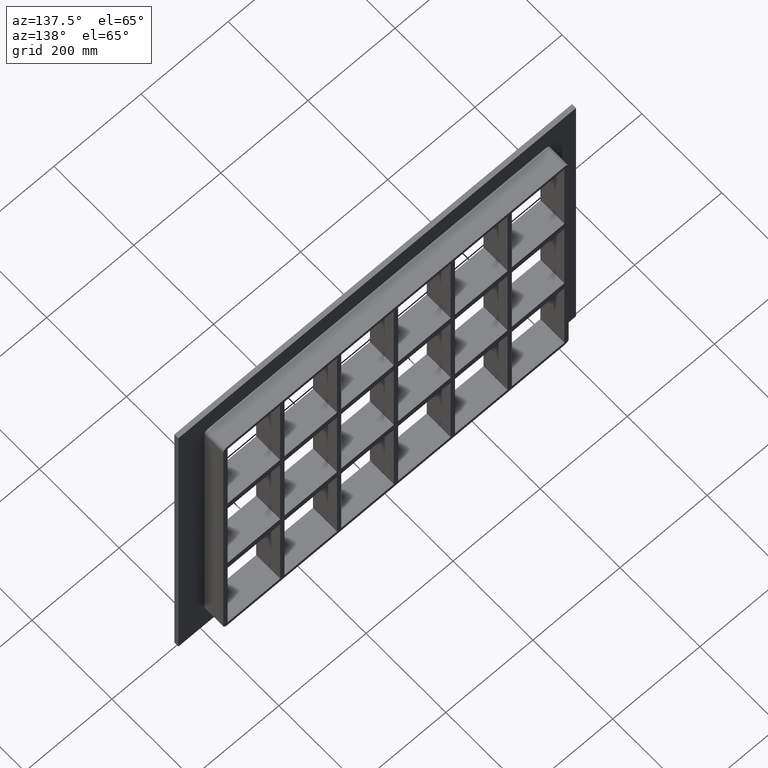
[diagram: clean part render]
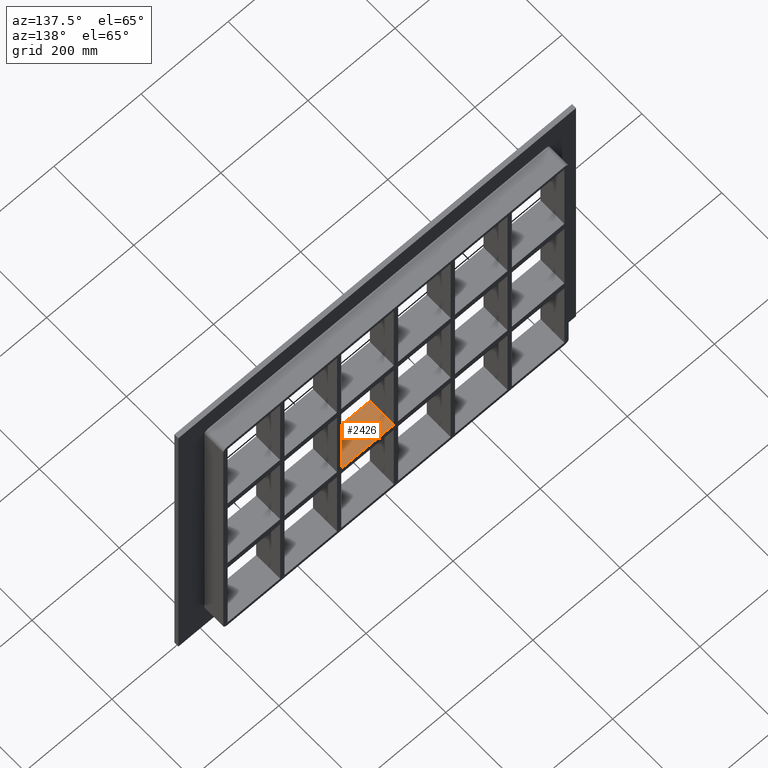
[diagram: same view with one face highlighted and labeled with its STEP entity id]
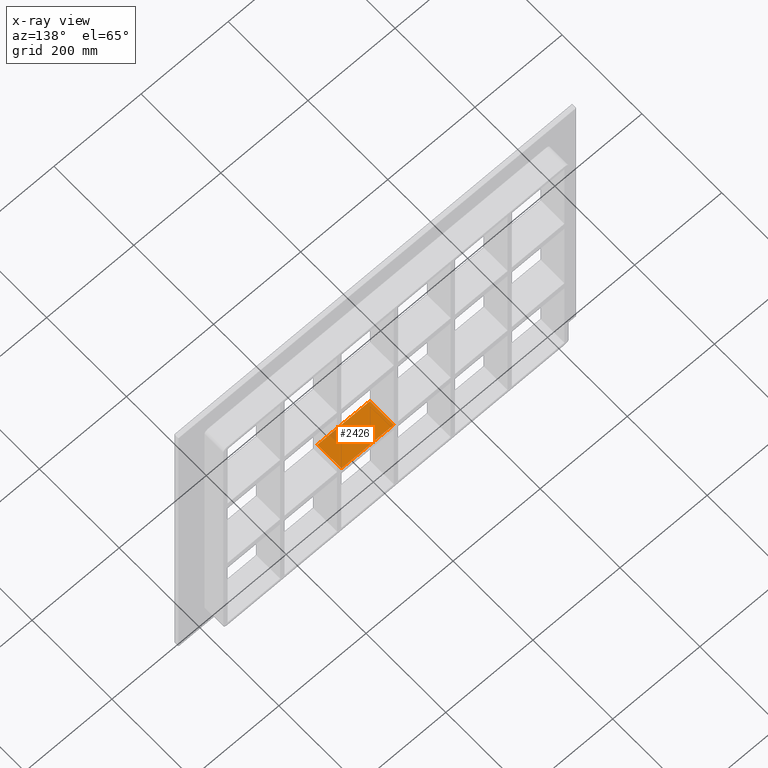
[diagram: x-ray of the same camera — body ghosted, the highlighted face saturated]
A machine part, auxiliary view. The second image highlights one B-rep face of the part: STEP entity #2426.
The next image is the same camera in x-ray: the body ghosted, the highlighted face saturated — about 5% of this face is hidden behind the body in this view.
In plain terms, the highlighted planar face has unit normal (0, 0, 1).
Its self-contained STEP definition (entity closure, byte-faithful):
#1174=CARTESIAN_POINT('',(4.999999999996376,57.0,-109.00000000000006));
#1175=VERTEX_POINT('',#1174);
#1182=CARTESIAN_POINT('',(125.49999999999868,57.0,-109.00000000000006));
#1183=VERTEX_POINT('',#1182);
#1184=CARTESIAN_POINT('',(4.999999999996362,57.0,-109.00000000000006));
#1185=DIRECTION('',(1.0,0.0,0.0));
#1186=VECTOR('',#1185,120.50000000000233);
#1187=LINE('',#1184,#1186);
#1188=EDGE_CURVE('',#1175,#1183,#1187,.T.);
#1581=CARTESIAN_POINT('',(125.49999999999868,-3.0,-109.00000000000006));
#1582=VERTEX_POINT('',#1581);
#1583=CARTESIAN_POINT('',(125.49999999999868,-3.0,-109.00000000000006));
#1584=DIRECTION('',(0.0,1.0,0.0));
#1585=VECTOR('',#1584,60.0);
#1586=LINE('',#1583,#1585);
#1587=EDGE_CURVE('',#1582,#1183,#1586,.T.);
#1745=CARTESIAN_POINT('',(4.999999999996376,-3.0,-109.00000000000006));
#1746=VERTEX_POINT('',#1745);
#1753=CARTESIAN_POINT('',(4.999999999996376,57.0,-109.00000000000006));
#1754=DIRECTION('',(0.0,-1.0,0.0));
#1755=VECTOR('',#1754,60.0);
#1756=LINE('',#1753,#1755);
#1757=EDGE_CURVE('',#1175,#1746,#1756,.T.);
#2112=CARTESIAN_POINT('',(4.999999999996362,-3.0,-109.00000000000006));
#2113=DIRECTION('',(1.0,0.0,0.0));
#2114=VECTOR('',#2113,120.50000000000233);
#2115=LINE('',#2112,#2114);
#2116=EDGE_CURVE('',#1746,#1582,#2115,.T.);
#2415=CARTESIAN_POINT('',(-386.49999999999972,-3.0,-109.00000000000006));
#2416=DIRECTION('',(0.0,0.0,1.0));
#2417=DIRECTION('',(1.0,0.0,0.0));
#2418=AXIS2_PLACEMENT_3D('',#2415,#2416,#2417);
#2419=PLANE('',#2418);
#2420=ORIENTED_EDGE('',*,*,#1587,.T.);
#2421=ORIENTED_EDGE('',*,*,#1188,.F.);
#2422=ORIENTED_EDGE('',*,*,#1757,.T.);
#2423=ORIENTED_EDGE('',*,*,#2116,.T.);
#2424=EDGE_LOOP('',(#2420,#2421,#2422,#2423));
#2425=FACE_OUTER_BOUND('',#2424,.T.);
#2426=ADVANCED_FACE('',(#2425),#2419,.T.);